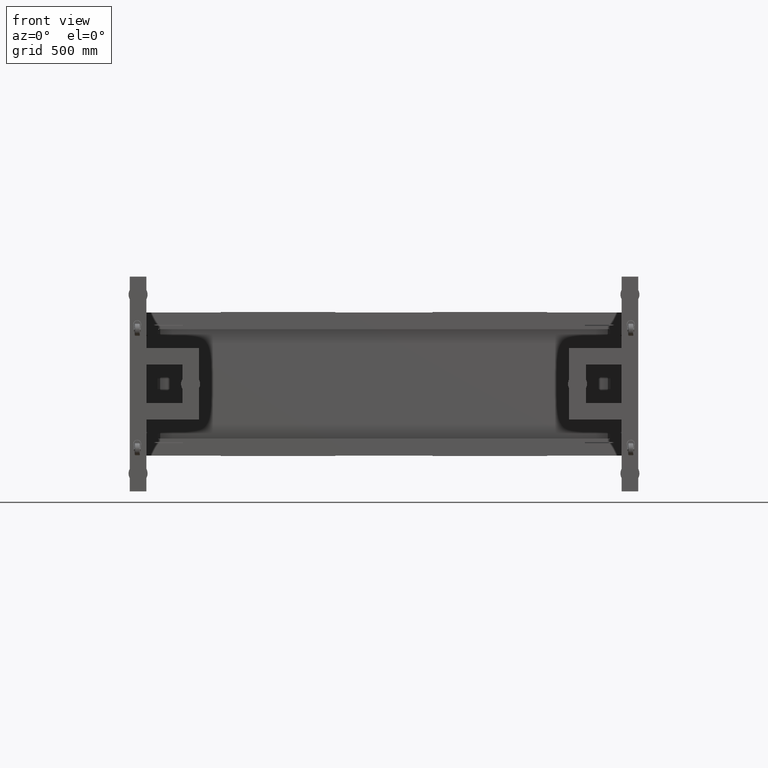
[diagram: clean part render]
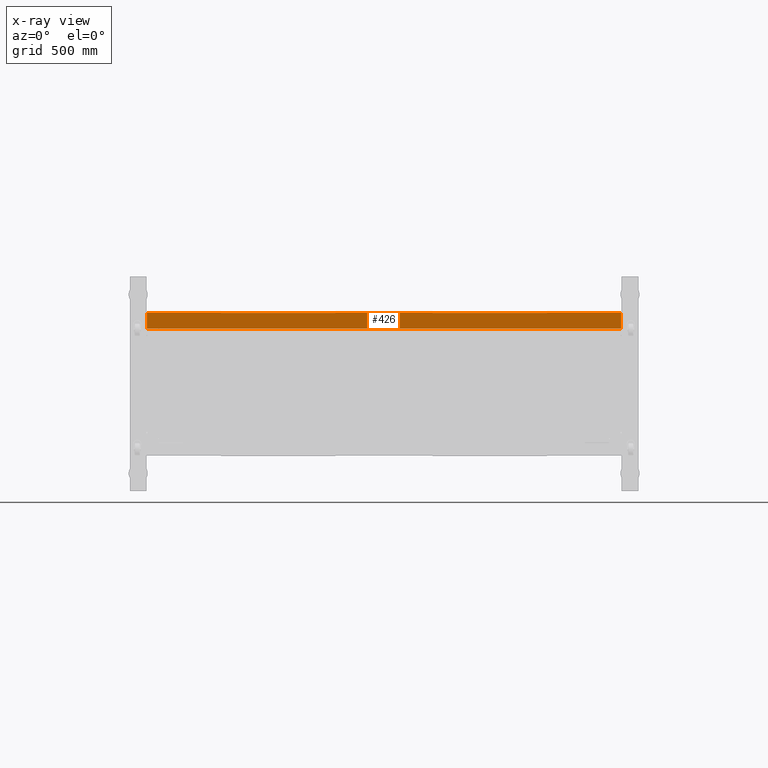
[diagram: x-ray — body ghosted, one internal face saturated and labeled with its STEP entity id]
A machine part, front view, then the same camera in x-ray: the body is ghosted and one INTERNAL B-rep face — a face not visible from any outside direction — is saturated and labeled: STEP entity #426.
In plain terms, the highlighted planar face has unit normal (0, -1, -0).
Its self-contained STEP definition (entity closure, byte-faithful):
#426 = ADVANCED_FACE ( 'NONE', ( #2632 ), #10369, .T. ) ;
#1014 = EDGE_CURVE ( 'NONE', #77701, #7998, #42435, .T. ) ;
#2632 = FACE_OUTER_BOUND ( 'NONE', #25251, .T. ) ;
#3423 = LINE ( 'NONE', #71335, #63214 ) ;
#4247 = DIRECTION ( 'NONE',  ( 0.000000000000000000, -1.000000000000000000, -2.999999999999999839E-15 ) ) ;
#4293 = LINE ( 'NONE', #66065, #34918 ) ;
#7998 = VERTEX_POINT ( 'NONE', #80535 ) ;
#10369 = PLANE ( 'NONE',  #17143 ) ;
#10928 = CARTESIAN_POINT ( 'NONE',  ( -1266.172487437185964, 554.4410804020110390, 232.5000000000000853 ) ) ;
#11650 = CARTESIAN_POINT ( 'NONE',  ( 1021.827512562814036, 554.4410804020108117, 297.5000000000001137 ) ) ;
#12104 = ORIENTED_EDGE ( 'NONE', *, *, #22772, .T. ) ;
#13270 = ORIENTED_EDGE ( 'NONE', *, *, #73836, .F. ) ;
#17143 = AXIS2_PLACEMENT_3D ( 'NONE', #60287, #4247, #29200 ) ;
#17415 = VECTOR ( 'NONE', #35488, 1000.000000000000000 ) ;
#18164 = DIRECTION ( 'NONE',  ( -1.000000000000000000, -0.000000000000000000, 0.000000000000000000 ) ) ;
#22772 = EDGE_CURVE ( 'NONE', #41291, #7998, #55036, .T. ) ;
#25251 = EDGE_LOOP ( 'NONE', ( #35346, #13270, #27937, #12104 ) ) ;
#27937 = ORIENTED_EDGE ( 'NONE', *, *, #69659, .T. ) ;
#29056 = VECTOR ( 'NONE', #18164, 1000.000000000000000 ) ;
#29200 = DIRECTION ( 'NONE',  ( 0.000000000000000000, -2.999999999999999839E-15, 1.000000000000000000 ) ) ;
#29250 = DIRECTION ( 'NONE',  ( -1.000000000000000000, -0.000000000000000000, 0.000000000000000000 ) ) ;
#34918 = VECTOR ( 'NONE', #29250, 1000.000000000000000 ) ;
#35346 = ORIENTED_EDGE ( 'NONE', *, *, #1014, .F. ) ;
#35488 = DIRECTION ( 'NONE',  ( 0.000000000000000000, -2.999999999999999839E-15, 1.000000000000000000 ) ) ;
#41038 = VERTEX_POINT ( 'NONE', #43746 ) ;
#41291 = VERTEX_POINT ( 'NONE', #54711 ) ;
#42435 = LINE ( 'NONE', #10928, #17415 ) ;
#43746 = CARTESIAN_POINT ( 'NONE',  ( 721.8275125628159685, 554.4410804020113801, 232.5000000000000853 ) ) ;
#46480 = CARTESIAN_POINT ( 'NONE',  ( -1266.172487437185964, 554.4410804020110390, 232.5000000000000853 ) ) ;
#54711 = CARTESIAN_POINT ( 'NONE',  ( 721.8275125628159685, 554.4410804020111527, 297.5000000000001137 ) ) ;
#55036 = LINE ( 'NONE', #11650, #29056 ) ;
#60287 = CARTESIAN_POINT ( 'NONE',  ( 1021.827512562814036, 554.4410804020110390, 232.5000000000000853 ) ) ;
#63214 = VECTOR ( 'NONE', #64793, 1000.000000000000000 ) ;
#64793 = DIRECTION ( 'NONE',  ( 7.960835153364788038E-31, -2.999999999999999839E-15, 1.000000000000000000 ) ) ;
#66065 = CARTESIAN_POINT ( 'NONE',  ( 1021.827512562814036, 554.4410804020110390, 232.5000000000000853 ) ) ;
#69659 = EDGE_CURVE ( 'NONE', #41038, #41291, #3423, .T. ) ;
#71335 = CARTESIAN_POINT ( 'NONE',  ( 721.8275125628159685, 554.4410804020113801, 232.5000000000000853 ) ) ;
#73836 = EDGE_CURVE ( 'NONE', #41038, #77701, #4293, .T. ) ;
#77701 = VERTEX_POINT ( 'NONE', #46480 ) ;
#80535 = CARTESIAN_POINT ( 'NONE',  ( -1266.172487437185964, 554.4410804020108117, 297.5000000000001137 ) ) ;